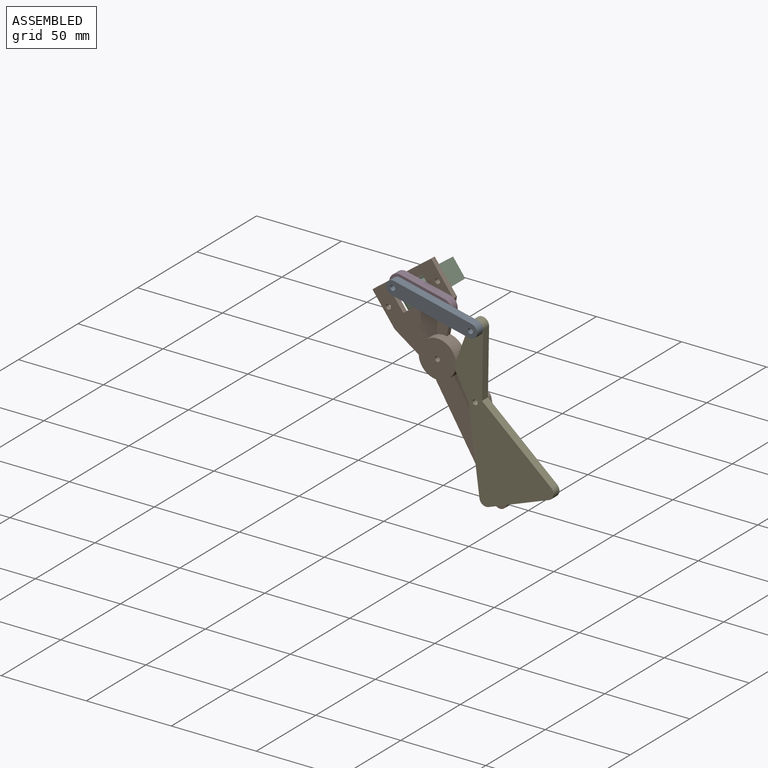
[diagram: assembled view]
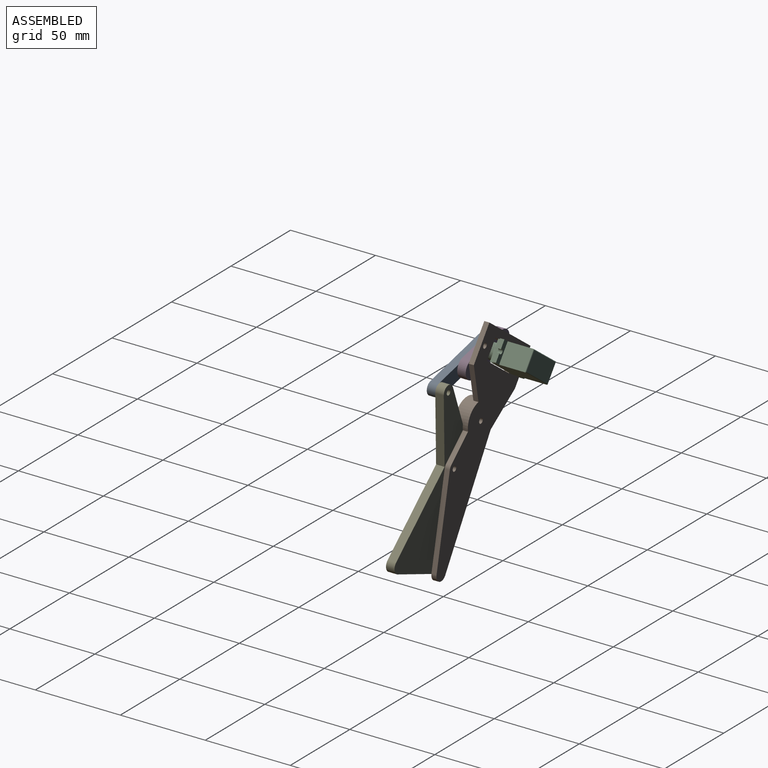
[diagram: assembled view, second angle]
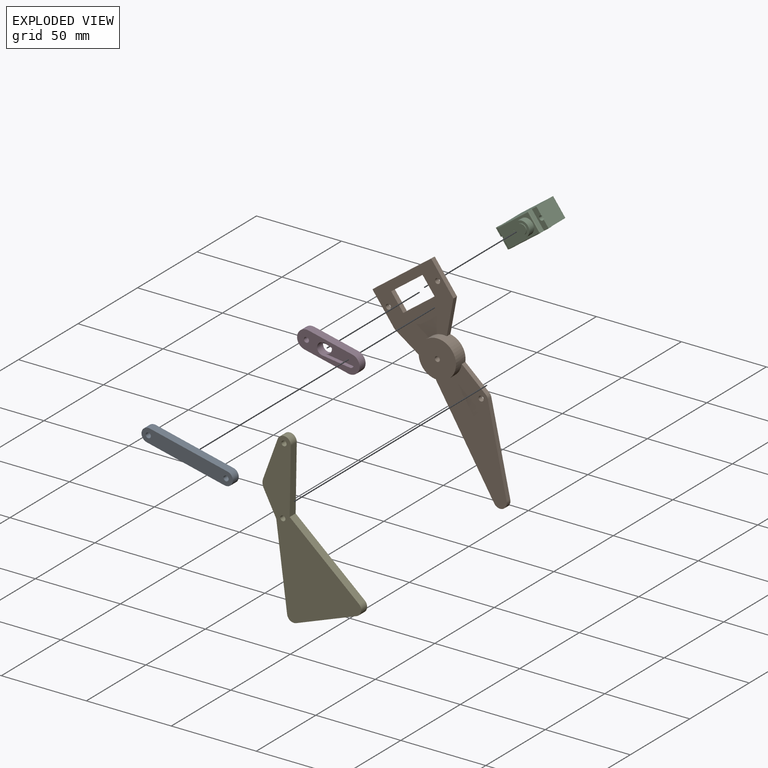
[diagram: exploded view]
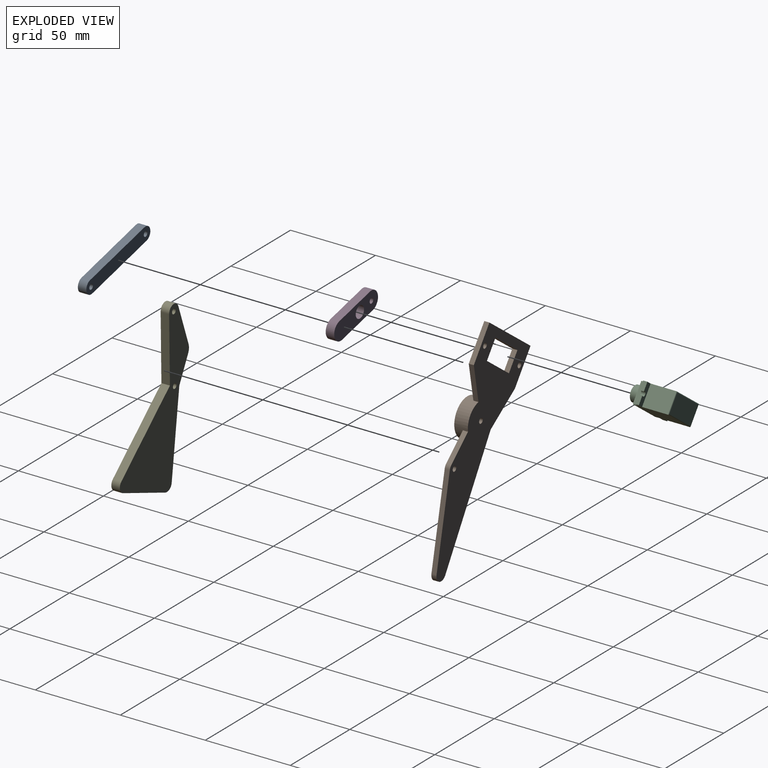
[diagram: exploded view, second angle]
ASSEMBLY  parts=5 mates=7
PART A: 8 faces, bbox 50.8x5x27.4 mm
  f0: plane 42.8x19.43mm, normal (-0.41,0,0.91), area 235mm2, adj f1,f4,f6,f7
  f1: cylinder r=4mm len=7.64mm, axis (0,1,0), area 62.8mm2, adj f0,f2,f6,f7
  f2: plane 42.8x19.43mm, normal (0.41,0,-0.91), area 235mm2, adj f1,f4,f6,f7
  f3: cylinder r=1.5mm len=5mm, axis (0,1,0), area 47.1mm2, adj f6,f7
  f4: cylinder r=4mm len=7.64mm, axis (0,1,0), area 62.8mm2, adj f0,f2,f6,f7
  f5: cylinder r=1.5mm len=5mm, axis (0,1,0), area 47.1mm2, adj f6,f7
  f6: plane 50.8x27.43mm, normal (0,-1,0), area 412.1mm2, adj f0,f1,f2,f3,f4,f5
  f7: plane 50.8x27.43mm, normal (0,1,0), area 412.1mm2, adj f0,f1,f2,f3,f4,f5
PART B: 22 faces, bbox 115x8x86.8 mm
  f0: plane 10.97x4.87mm, normal (-0.41,0,-0.91), area 36mm2, adj f1,f18,f19,f20
  f1: plane 21.02x9.33mm, normal (-0.91,0,0.41), area 69mm2, adj f0,f2,f19,f20
  f2: plane 10.97x4.87mm, normal (0.41,0,0.91), area 36mm2, adj f1,f18,f19,f20
  f3: plane 18.29x3.84mm, normal (0.21,0,0.98), area 56.1mm2, adj f4,f17,f19,f20
  f4: cylinder r=11mm len=22mm, axis (0,-1,0), area 396.1mm2, adj f3,f5,f19,f20,f21
  f5: plane 20.28x7.02mm, normal (0.94,0,0.33), area 64.4mm2, adj f4,f6,f19,f20
  f6: plane 20.11x8.93mm, normal (0.41,0,0.91), area 66mm2, adj f5,f7,f19,f20
  f7: plane 39.3x17.45mm, normal (-0.91,0,0.41), area 129mm2, adj f6,f8,f19,f20
  f8: plane 20.11x8.93mm, normal (-0.41,0,-0.91), area 66mm2, adj f7,f9,f19,f20
  f9: plane 24.7x3mm, normal (-0.09,0,-1), area 74.4mm2, adj f8,f10,f19,f20
  f10: plane 64.24x35.9mm, normal (-0.49,0,-0.87), area 220.8mm2, adj f9,f11,f19,f20
  f11: cylinder r=4mm len=6.67mm, axis (0,-1,0), area 33.7mm2, adj f10,f12,f19,f20
  f12: plane 39.35x35.15mm, normal (0.75,0,0.67), area 158.3mm2, adj f11,f17,f19,f20
  f13: cylinder r=1.5mm len=3mm, axis (0,-1,0), area 28.3mm2, adj f19,f20
  f14: cylinder r=1.5mm len=3mm, axis (0,-1,0), area 28.3mm2, adj f19,f20
  f15: cylinder r=1.5mm len=8mm, axis (0,-1,0), area 75.4mm2, adj f19,f21
  f16: cylinder r=1.5mm len=3mm, axis (0,-1,0), area 28.3mm2, adj f19,f20
  f17: cylinder r=4mm len=3mm, axis (0,-1,0), area 7.6mm2, adj f3,f12,f19,f20
  f18: plane 21.02x9.33mm, normal (0.91,0,-0.41), area 69mm2, adj f0,f2,f19,f20
  f19: plane 115x86.78mm, normal (0,1,0), area 2732.3mm2, adj f0,f1,f2,f3,f4,f5,f6,f7
  f20: plane 115x86.78mm, normal (0,-1,0), area 2359.2mm2, adj f0,f1,f2,f3,f4,f5,f6,f7
  f21: plane 22x22mm, normal (0,-1,0), area 373.1mm2, adj f4,f15
PART C: 33 faces, bbox 12.1x29.7x25.9 mm
  f0: plane 12.1x2.7mm, normal (0,1,0), area 32.7mm2, adj f4,f6,f16,f29
  f1: plane 12.1x2.7mm, normal (0,-1,0), area 32.7mm2, adj f4,f6,f17,f24
  f2: plane 22x11.1mm, normal (0,0,1), area 176.2mm2, adj f8,f9,f10,f11,f15,f16,f17,f18
  f3: plane 15.2x12.1mm, normal (0,1,0), area 183.9mm2, adj f4,f6,f20,f30
  f4: plane 29.69x20.4mm, normal (-1,0,0), area 485.9mm2, adj f0,f1,f3,f5,f15,f19,f24,f25
  f5: plane 15.2x12.1mm, normal (0,-1,0), area 183.9mm2, adj f4,f6,f21,f25
  f6: plane 29.69x20.4mm, normal (1,0,0), area 485.9mm2, adj f0,f1,f3,f5,f18,f22,f23,f24
  f7: plane 22x11.1mm, normal (0,0,-1), area 244.2mm2, adj f19,f20,f21,f22
  f8: plane 4x1.5mm, normal (1,0,0), area 6mm2, adj f2,f9,f11,f12
  f9: cylinder r=1mm len=4mm, axis (0,0,-1), area 12.6mm2, adj f2,f8,f10,f12
  f10: plane 4x1.5mm, normal (-1,0,0), area 6mm2, adj f2,f9,f11,f12
  f11: cylinder r=4.5mm len=9mm, axis (0,0,-1), area 105mm2, adj f2,f8,f10,f12
  f12: plane 11.39x9mm, normal (0,0,1), area 39.9mm2, adj f8,f9,f10,f11,f13
  f13: cylinder r=2.99mm len=5.98mm, axis (0,0,-1), area 9.4mm2, adj f12,f14
  f14: plane 5.98x5.98mm, normal (0,0,1), area 28.1mm2, adj f13
  f15: cylinder r=0.5mm len=23mm, axis (0,1,0), area 17.8mm2, adj f2,f4,f16,f17
  f16: cylinder r=0.5mm len=12.1mm, axis (1,0,0), area 9.2mm2, adj f0,f2,f15,f18
  f17: cylinder r=0.5mm len=12.1mm, axis (-1,0,0), area 9.2mm2, adj f1,f2,f15,f18
  f18: cylinder r=0.5mm len=23mm, axis (0,-1,0), area 17.8mm2, adj f2,f6,f16,f17
  f19: cylinder r=0.5mm len=23mm, axis (0,-1,0), area 17.8mm2, adj f4,f7,f20,f21
  f20: cylinder r=0.5mm len=12.1mm, axis (-1,0,0), area 9.2mm2, adj f3,f7,f19,f22
  f21: cylinder r=0.5mm len=12.1mm, axis (1,0,0), area 9.2mm2, adj f5,f7,f19,f22
  f22: cylinder r=0.5mm len=23mm, axis (0,1,0), area 17.8mm2, adj f6,f7,f20,f21
  f23: plane 5.01x2.5mm, normal (0,-1,0), area 12.5mm2, adj f6,f24,f25,f27
  f24: plane 12.1x3.35mm, normal (0,0,1), area 35.5mm2, adj f1,f4,f6,f23,f26,f27
  f25: plane 12.1x3.35mm, normal (0,0,-1), area 35.5mm2, adj f4,f5,f6,f23,f26,f27
  f26: plane 4.98x2.5mm, normal (0,-1,0), area 12.5mm2, adj f4,f24,f25,f27
  f27: cylinder r=1.35mm len=2.7mm, axis (0,0,-1), area 15.2mm2, adj f23,f24,f25,f26
  f28: plane 5.01x2.5mm, normal (0,1,0), area 12.5mm2, adj f6,f29,f30,f32
  f29: plane 12.1x3.35mm, normal (0,0,1), area 35.5mm2, adj f0,f4,f6,f28,f31,f32
  f30: plane 12.1x3.35mm, normal (0,0,-1), area 35.5mm2, adj f3,f4,f6,f28,f31,f32
  f31: plane 4.98x2.5mm, normal (0,1,0), area 12.5mm2, adj f4,f29,f30,f32
  f32: cylinder r=1.35mm len=2.7mm, axis (0,0,-1), area 15.2mm2, adj f28,f29,f30,f31
PART D: 12 faces, bbox 37.5x5x11 mm
  f0: cylinder r=2mm len=3.98mm, axis (0,-1,0), area 14.8mm2, adj f1,f6,f9,f10
  f1: plane 16.36x2.5mm, normal (0.09,0,-1), area 41.1mm2, adj f0,f2,f9,f10
  f2: cylinder r=3.5mm len=7mm, axis (0,-1,0), area 84.1mm2, adj f1,f6,f9,f10,f11
  f3: plane 26.5x5mm, normal (0,0,1), area 132.5mm2, adj f4,f7,f9,f11
  f4: cylinder r=5.5mm len=11mm, axis (0,-1,0), area 86.4mm2, adj f3,f5,f9,f11
  f5: plane 26.5x5mm, normal (0,0,-1), area 132.5mm2, adj f4,f7,f9,f11
  f6: plane 16.36x2.5mm, normal (0.09,0,1), area 41.1mm2, adj f0,f2,f9,f10
  f7: cylinder r=5.5mm len=11mm, axis (0,-1,0), area 86.4mm2, adj f3,f5,f9,f11
  f8: cylinder r=1.5mm len=5mm, axis (0,-1,0), area 47.1mm2, adj f9,f11
  f9: plane 37.5x11mm, normal (0,1,0), area 262.8mm2, adj f0,f1,f2,f3,f4,f5,f6,f7
  f10: plane 18.18x6.97mm, normal (0,1,0), area 78.2mm2, adj f0,f1,f2,f6
  f11: plane 37.5x11mm, normal (0,-1,0), area 341mm2, adj f2,f3,f4,f5,f7,f8
PART E: 14 faces, bbox 90.9x5x72.8 mm
  f0: plane 50.12x19.88mm, normal (0.93,0,-0.37), area 269.6mm2, adj f1,f10,f12,f13
  f1: plane 36.19x12.02mm, normal (0.32,0,-0.95), area 190.7mm2, adj f0,f2,f12,f13
  f2: cylinder r=4mm len=7.8mm, axis (0,1,0), area 56.2mm2, adj f1,f3,f12,f13
  f3: plane 24.92x5mm, normal (0.01,0,1), area 124.6mm2, adj f2,f4,f12,f13
  f4: cylinder r=6mm len=5mm, axis (0,1,0), area 24.9mm2, adj f3,f5,f12,f13
  f5: plane 11.79x11.08mm, normal (-0.73,0,0.68), area 80.9mm2, adj f4,f6,f12,f13
  f6: plane 44.27x22.34mm, normal (-0.45,0,0.89), area 248mm2, adj f5,f7,f12,f13
  f7: cylinder r=4mm len=6.13mm, axis (0,1,0), area 36mm2, adj f6,f8,f12,f13
  f8: plane 29.2x24.34mm, normal (-0.77,0,-0.64), area 190mm2, adj f7,f10,f12,f13
  f9: cylinder r=1.5mm len=5mm, axis (0,1,0), area 47.1mm2, adj f12,f13
  f10: cylinder r=4mm len=6.79mm, axis (0,1,0), area 41.4mm2, adj f0,f8,f12,f13
  f11: cylinder r=1.5mm len=5mm, axis (0,1,0), area 47.1mm2, adj f12,f13
  f12: plane 90.86x72.79mm, normal (0,-1,0), area 2045.9mm2, adj f0,f1,f2,f3,f4,f5,f6,f7
  f13: plane 90.86x72.79mm, normal (0,1,0), area 2045.9mm2, adj f0,f1,f2,f3,f4,f5,f6,f7
PLACE A rot(axis=(1,0,0.1),180deg) t=(-303.71,-70.65,-87.56)mm
PLACE B rot(axis=(0,1,0),29.6deg) t=(-242.97,-60.65,104.51)mm
PLACE C rot(axis=(0.34,-0.67,0.67),142.9deg) t=(-10.39,-45.45,-64.66)mm
PLACE D rot(axis=(0.11,0,0.99),180deg) t=(263.36,-63.15,-131.55)mm
PLACE E rot(axis=(0,-1,0),70.6deg) t=(-119.55,-60.65,-509.53)mm fixed
MATE planar C.f6 <-> B.f18  axis (-0.59,0,0.8) through (-13.99,-45.67,-59.78)mm
MATE planar C.f3 <-> B.f2  axis (-0.8,0,-0.59) through (-19.64,-42.85,-71.48)mm
MATE cylindrical A.f1 <-> D.f7  axis (0,-1,0) through (-15.4,-70.65,-58.91)mm
MATE planar C.f11 <-> B.f20  axis (0,-1,0) through (-5.65,-60.65,-61.16)mm
MATE revolute A.f3 <-> E.f2  axis (0,1,0) through (30.38,-65.65,-69.58)mm
MATE revolute D.f2 <-> C.f11  axis (0,1,0) through (-5.65,-60.65,-61.16)mm
MATE revolute E.f9 <-> B.f16  axis (0,1,0) through (29.68,-60.65,-109.57)mm
